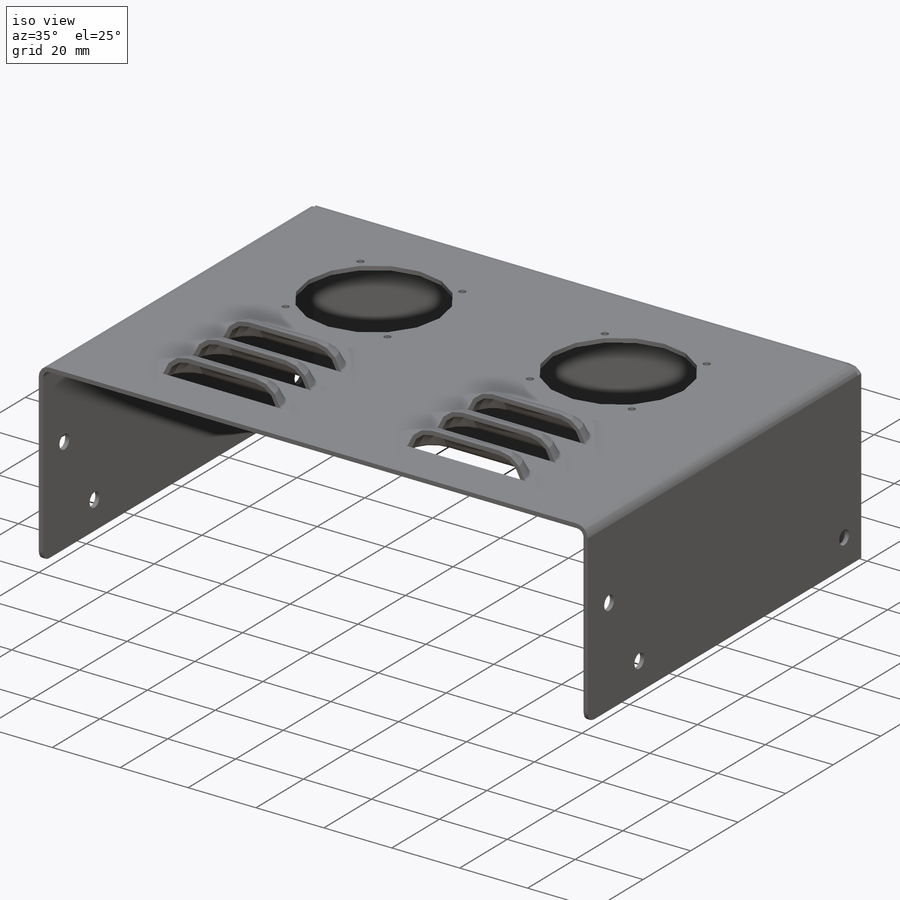
[diagram: iso view]
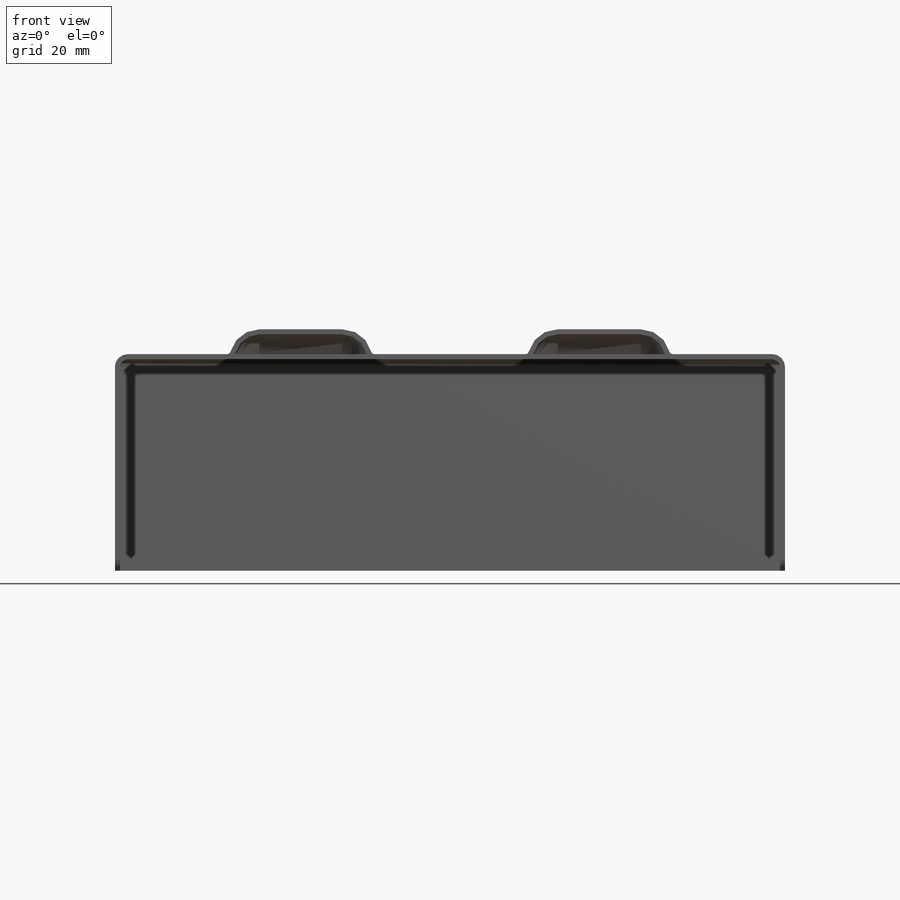
[diagram: front view]
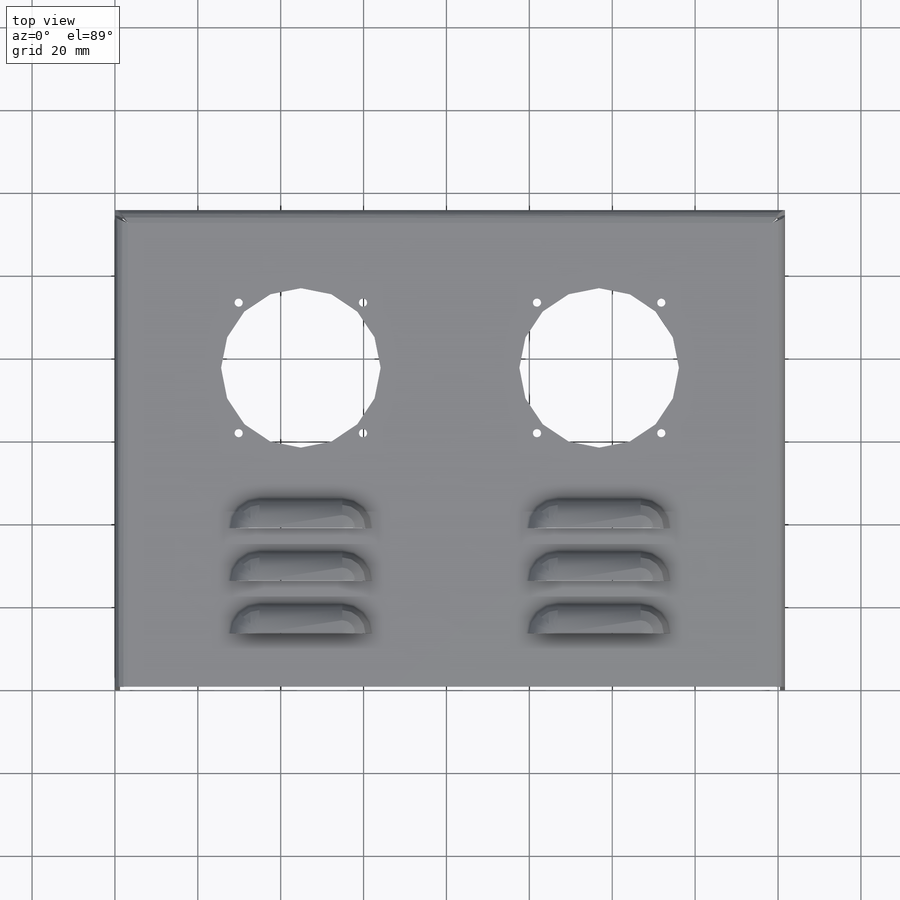
[diagram: top view]
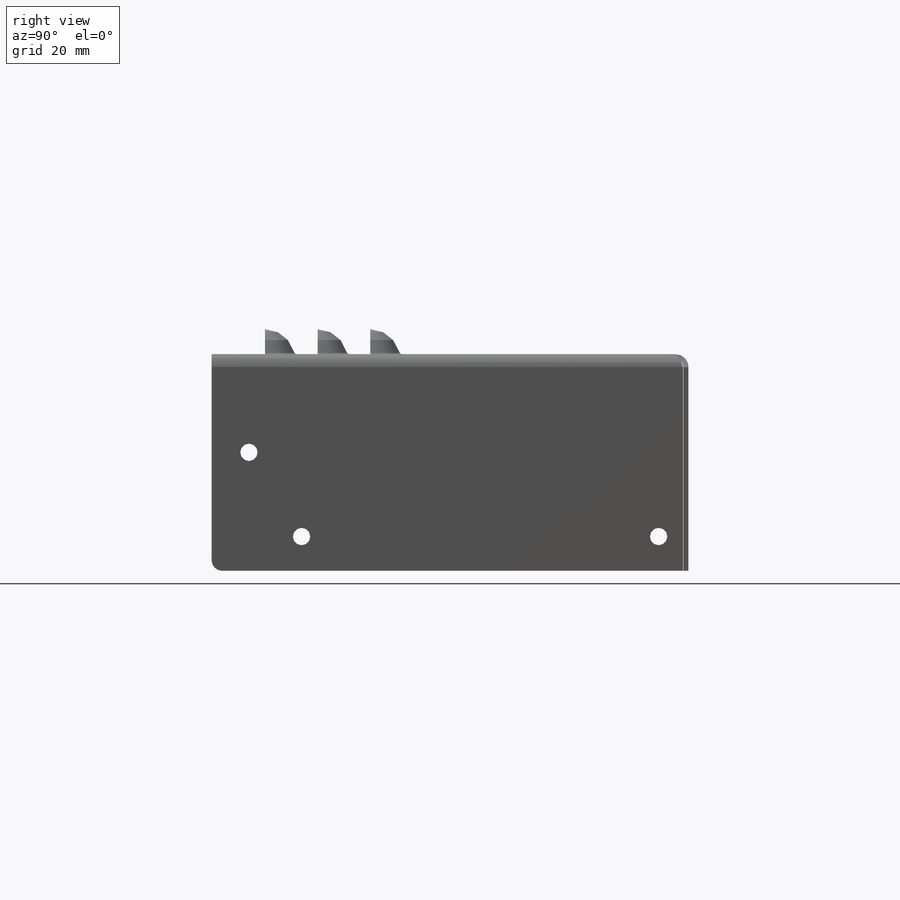
[diagram: right view]
SOLIDWORKS PART (.sldprt)
format: sldprt  version: not decoded by parser v0  size: 693,248 bytes
history: native  units: mm
features: sketch x16, cut_extrude x3, plane x3, material x2, sheet_metal_op x2, fillet x2, extrude x2, revolve x2 + 3 further entries (+22 scaffold rows collapsed)
feature tree (57):
  scaffold x22  (default folders/planes/origin — collapsed)
  material  "Material <not specified>"
  material  "Material <not specified>"
  sketch  "Sketch1"  dims[c1.D1=92.1512mm c1.D2=37.2745mm c2.D1=72.6948mm c2.D2=22.2606mm c3.D1=44.704mm c3.D2=121.666mm c4.D1=0.254mm]
  sheet_metal_op  "Sheet-Metal1"
  sheet_metal_op  "Base-Flange1"
  sketch  "Sketch5"  dims[c1.D1=1.905mm c1.D4=90.0deg c1.D5=2.0 c1.D8=0.6096mm c1.D9=0.6096mm c2.D1=1.905mm c2.D2=500.0mm c2.D3=0.0mm c2.D6=10.0mm c2.D7=51.054mm]
  sketch  "Sketch8"  dims[c1.D1=1.905mm c1.D4=90.0deg c1.D5=3.0 c1.D8=0.6096mm c1.D9=0.6096mm c2.D1=1.905mm c2.D2=500.0mm c2.D3=0.0mm c2.D6=10.0mm c2.D7=51.054mm c3.D1=2000.0mm]
  fillet  "Fillet1"  Radius=2.54mm
  sketch  "Sketch11"  dims[D1=4.191mm D2=~5.995662mm]
  cut_extrude  "Cut-Extrude2"  [1 undecoded]
  sketch  "Sketch12"  dims[D3=38.5mm D6=2.0mm D1=60.5mm D2=47.0mm D4=30.0mm D5=31.5mm]
  cut_extrude  "Cut-Extrude3"  [1 undecoded]
  sketch  "Sketch17"  dims[D1=12.7mm D2=12.7mm D3=28.575mm]
  sketch  "Sketch18"  dims[D1=90.0deg]
  plane  "Plane1"
  plane  "Plane2"
  plane  "Plane3"
  sketch  "Sketch1"  dims[D1=30.0mm]
  extrude  "Base-Extrude"  Depth=50mm
  sketch  "Layout Sketch"  dims[c1.Overall width=32.0mm c1.D2=5.0mm c1.D3=22.0mm c1.Depth=6.0mm c2.D3=16.0mm c2.D1=0.0mm]
  sketch  "Louver Body"  dims[c1.Louver Radius=6.0mm c1.D1=~7.165211mm c2.D1=5.0deg c2.D3=10.0mm c2.Louver Height=6.0mm]
  extrude  "Boss-Extrude1"  Depth=20mm Width=20mm
  sketch  "Sketch12"  dims[D1=0.0mm]
  revolve  "Boss-Revolve2"  Angle=90deg
  sketch  "Sketch13"  dims[D1=0.0mm]
  revolve  "Boss-Revolve3"  Angle=90deg
  fillet  "Fillet1"  Radius=2mm Bottom Fillet Radius=2mm
  sketch  "Sketch8"  dims[D1=0.0mm]
  cut_extrude  "Cut-Extrude4"  [1 undecoded]
  sketch  "Orientation sketch"  dims[D1=0.0mm]
  "Flat-Pattern1"
  sketch  "Bend-Lines1"
  sketch  "Bounding-Box1"
  "Flatten-<EdgeBend1>1"
  "Flatten-<EdgeBend2>1"
decode coverage: 20 of 27 modeling features carry decoded parameters; 3 rows unclassified (native names shown)
note: ~ marks probable driven/reference dimensions
note: 3 parameter values undecoded
summary: no parameter record found for 3 features
note: suppression state not decoded; provenance and decode notes live in map.json
